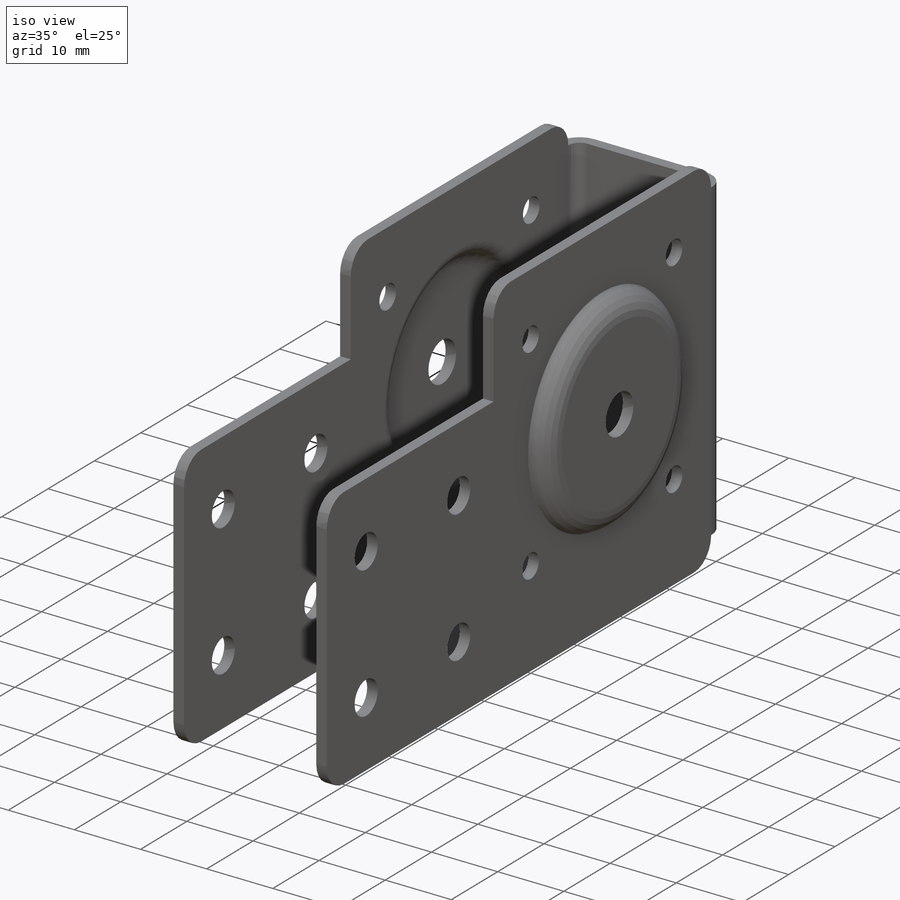
[diagram: iso view]
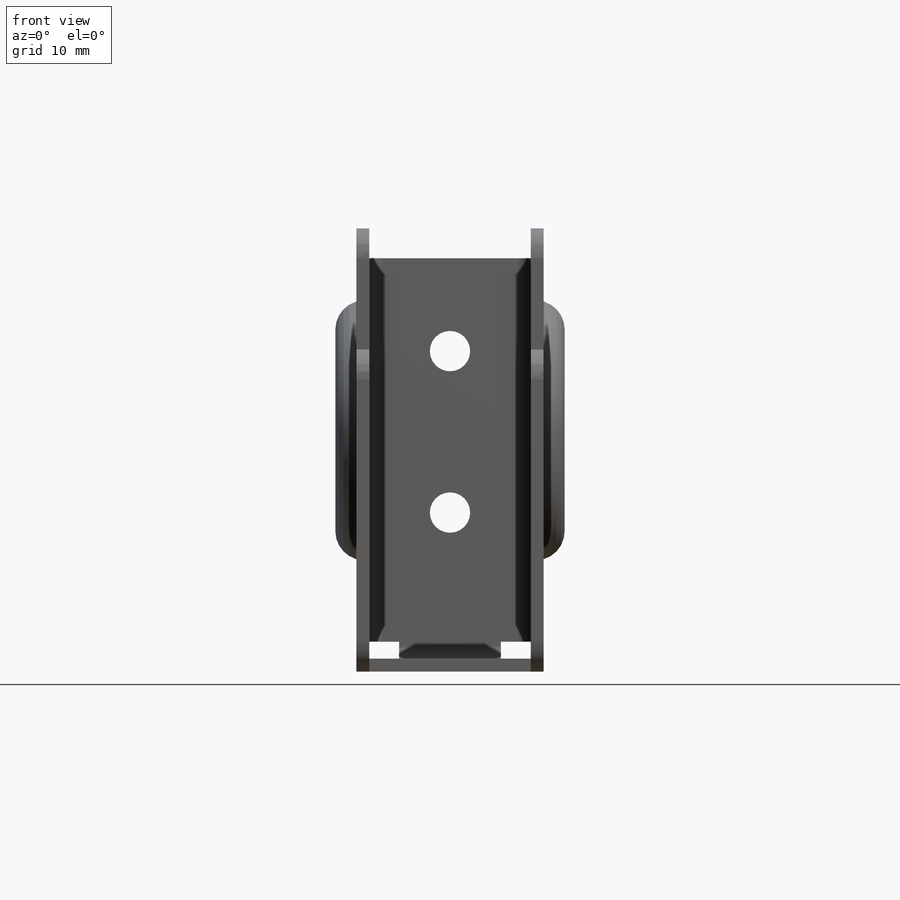
[diagram: front view]
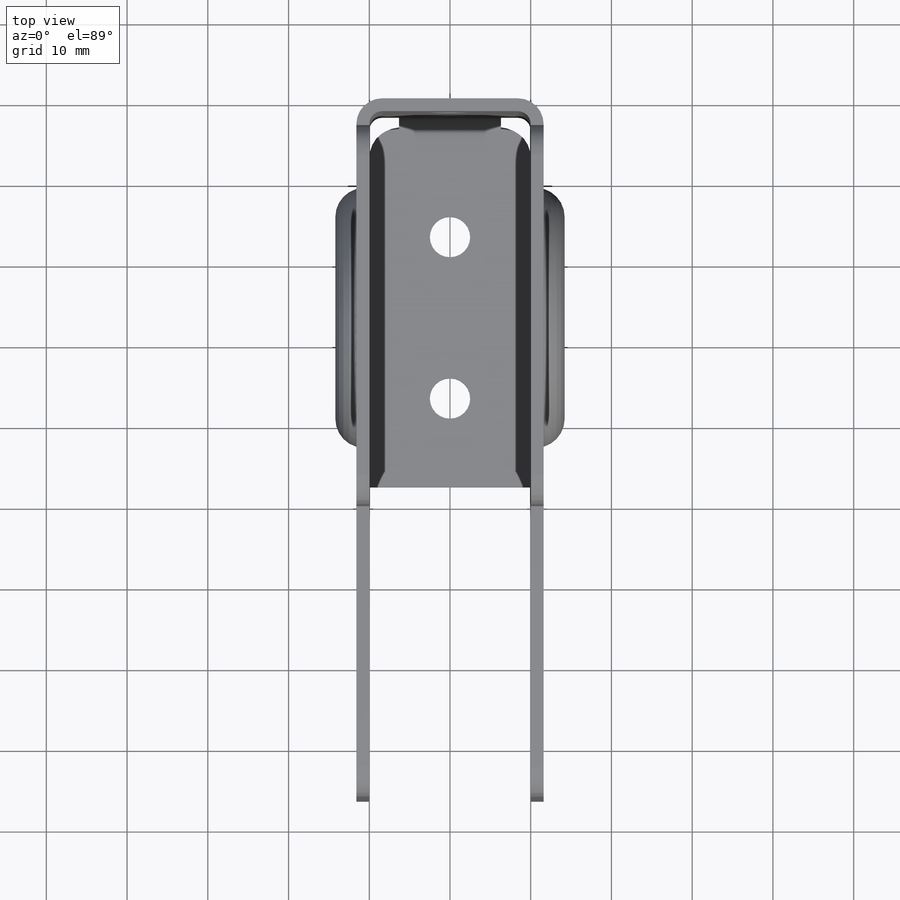
[diagram: top view]
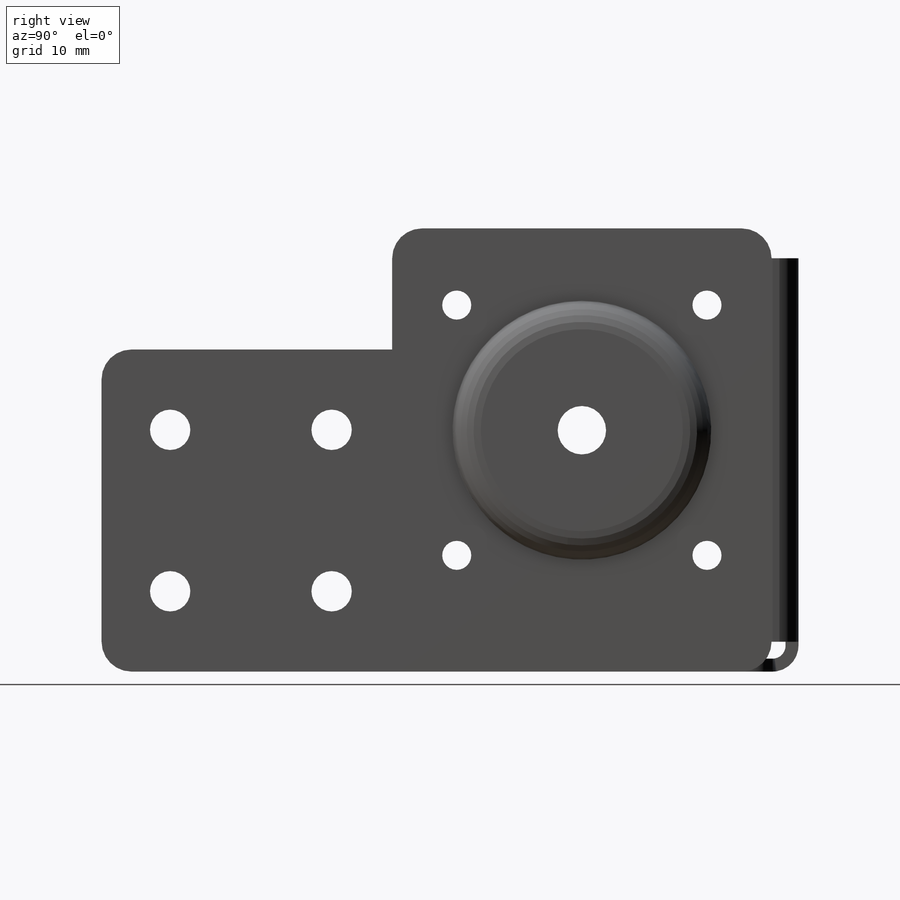
[diagram: right view]
SOLIDWORKS PART (.sldprt)
format: sldprt  version: not decoded by parser v0  size: 1,497,600 bytes
history: native  units: mm
features: sketch x25, plane x6, fillet x4, material x3, extrude x3, cut_extrude x3, revolve x2, sheet_metal_op x2 + 4 further entries (+33 scaffold rows collapsed; 1 parser-record rows omitted)
feature tree (86):
  scaffold x33  (default folders/planes/origin — collapsed)
  material  "6061-T6 (SS)"
  material  "Material <not specified>"
  material  "Material <not specified>"
  sketch  "Sketch1"  dims[c1.D6=3.7mm c1.D12=3.6mm c1.D13=3.6mm c1.D14=3.6mm c1.D17=~3.961059mm c1.D18=5.0mm c1.D20=~6.17578mm c1.D22=~6.17578mm c1.D1=20.0mm c1.D2=44.7mm c1.D3=39.9mm c1.D4=47.0mm c1.D5=24.6mm c1.D7=44.5mm c1.D8=54.9mm c1.D9=83.0mm c1.D10=59.5mm c1.D11=25.0mm c2.D13=31.0mm c2.D14=31.0mm c2.D15=18.0mm c2.D16=20.0mm c2.D17=20.0mm c2.D19=32.5mm c3.D15=8.5mm c3.D19=11.0mm c3.D20=20.0mm c3.D21=11.5mm c3.D22=20.0mm]
  extrude  "Boss-Extrude1"  Depth=1.6mm
  sketch  "Sketch3"  dims[c1.D1=16.3mm c1.D2=4.15mm c2.D1=0.2mm c2.D2=0.7mm c2.D3=0.7mm c3.D1=1.6mm c3.D2=0.5 c3.D3=0.0mm c3.D6=500.0mm c4.D1=1.6mm c4.D2=500.0mm c4.D3=0.0mm]
  parser-record x1  (decoder bookkeeping rows leaked as tree rows — omitted from the tree; the rows remain in map.json)
  "SketchBend2"
  "SketchBend3"
  sketch  "Sketch21"
  sketch  "Sketch22"  dims[D1=0.0deg]
  plane  "Plane1"
  plane  "Plane2"
  plane  "Plane3"
  sketch  "Sketch1"  dims[D1=50.0mm D2=5.0mm]
  extrude  "Base-Extrude"  Depth=50mm
  sketch  "Sketch5"  dims[D1=28.7mm Height=2.6mm]
  revolve  "Boss-Revolve1"  Angle=360deg Diameter=28.7mm
  fillet  "Fillet3"  Radius=1.7mm Fillet Radius=1.7mm
  sketch  "Sketch6"  dims[D1=0.0mm]
  cut_extrude  "Cut-Extrude2"  [1 undecoded]
  sketch  "Orientation sketch"  dims[D1_1=0.0mm]
  fillet  "Fillet4"  Radius=2mm D1_2=2mm
  sketch  "Orientation Sketch"
  sketch  "Sketch23"
  sketch  "Sketch24"  dims[D1=0.0deg]
  plane  "Plane1"
  plane  "Plane2"
  plane  "Plane3"
  sketch  "Sketch1"  dims[D1=50.0mm D2=5.0mm]
  extrude  "Base-Extrude"  Depth=50mm
  sketch  "Sketch5"  dims[D1=28.7mm Height=2.6mm]
  revolve  "Boss-Revolve1"  Angle=360deg Diameter=28.7mm
  fillet  "Fillet3"  Radius=1.7mm Fillet Radius=1.7mm
  sketch  "Sketch6"  dims[D1=0.0mm]
  cut_extrude  "Cut-Extrude2"  [1 undecoded]
  sketch  "Orientation sketch"  dims[D1_1=0.0mm]
  fillet  "Fillet4"  Radius=2mm D1_2=2mm
  sketch  "Orientation Sketch"
  sketch  "Sketch25"  dims[D1=6.0mm]
  cut_extrude  "Cut-Extrude1"  [1 undecoded]
  sketch  "Bend-Lines1"
  sketch  "Bounding-Box1"
  sheet_metal_op  "Sheet-Metal2"
  "Flat-Pattern2"
  sketch  "Bend-Lines2"
  sketch  "Bounding-Box2"  dims[Sketch Transformation1=0.0]
  sheet_metal_op  "Sheet-Metal3"
  "Flat-Pattern2"
  sketch  "Bend-Lines2"
  sketch  "Bounding-Box2"  dims[Sketch Transformation1=0.0]
  sketch  "Sketch22-1"  dims[D1=0.0deg]
  sketch  "Sketch24-1"  dims[D1=0.0deg]
decode coverage: 26 of 39 modeling features carry decoded parameters; 4 rows unclassified (native names shown)
note: ~ marks probable driven/reference dimensions
note: 3 parameter values undecoded
summary: no parameter record found for 3 features
note: suppression state not decoded; provenance and decode notes live in map.json
